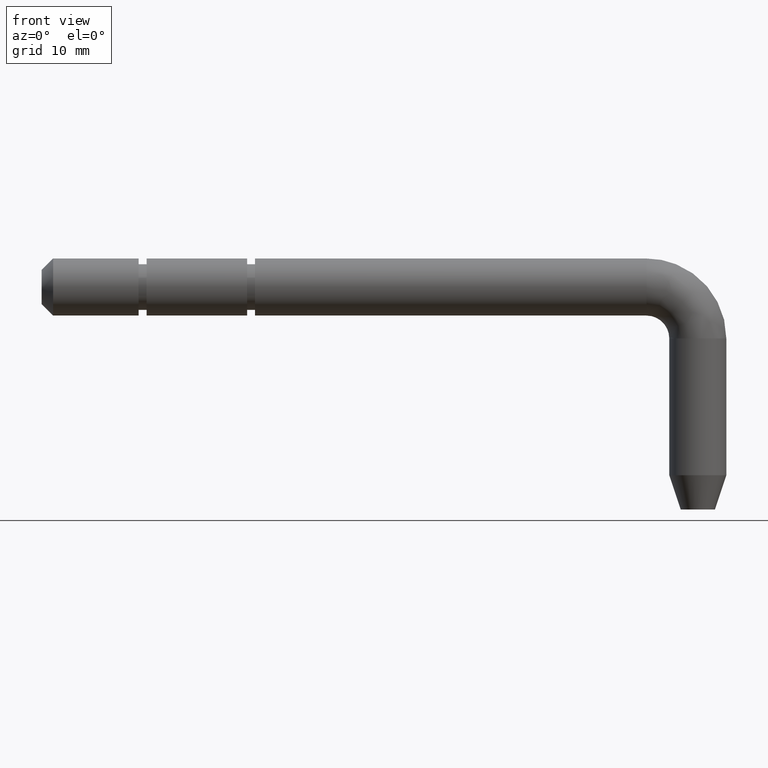
[diagram: clean part render]
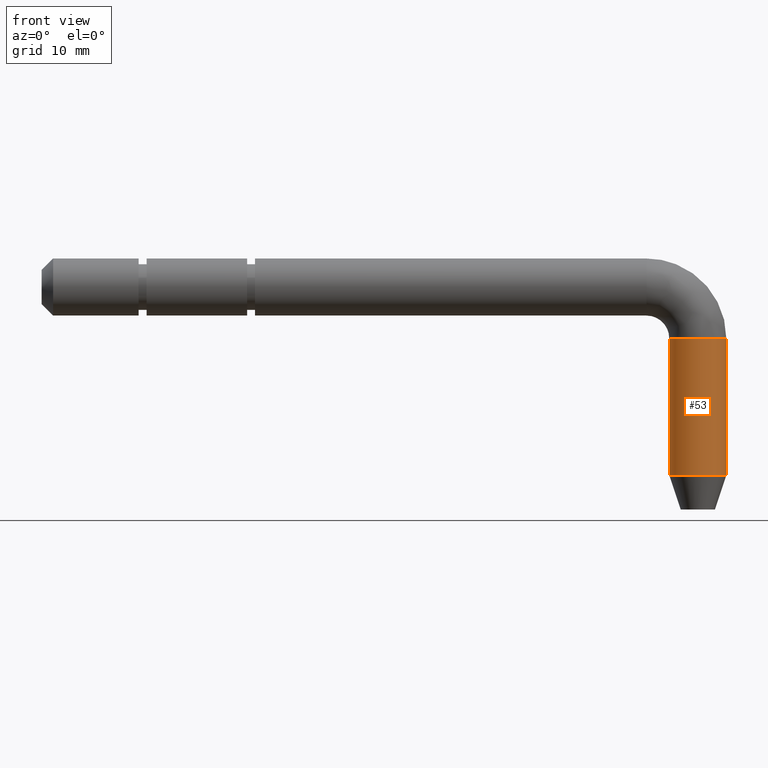
[diagram: same view with one face highlighted and labeled with its STEP entity id]
A machine part, front view. The second image highlights one B-rep face of the part: STEP entity #53.
In plain terms, the highlighted cylindrical surface (edge-blend (fillet) strip) has radius 2.5 mm, axis along (0, 0, -1).
Its self-contained STEP definition (entity closure, byte-faithful):
#53=ADVANCED_FACE('',(#199),#198,.T.);
#198=CYLINDRICAL_SURFACE('',#428,2.50000000000E+00);
#199=FACE_OUTER_BOUND('',#429,.T.);
#425=CARTESIAN_POINT('',(5.75000000000E+01,1.96182736230E-15,-1.77000000000E+01));
#426=DIRECTION('',(1.53824696311E-32,2.51214793389E-16,-1.00000000000E+00));
#427=DIRECTION('',(-1.00000000000E+00,7.84730944919E-16,1.81753552563E-31));
#428=AXIS2_PLACEMENT_3D('',#425,#426,#427);
#429=EDGE_LOOP('',(#552,#553,#554,#555));
#552=ORIENTED_EDGE('',*,*,#621,.T.);
#553=ORIENTED_EDGE('',*,*,#627,.T.);
#554=ORIENTED_EDGE('',*,*,#629,.F.);
#555=ORIENTED_EDGE('',*,*,#628,.F.);
#621=EDGE_CURVE('',#643,#642,#816,.T.);
#627=EDGE_CURVE('',#642,#846,#854,.T.);
#628=EDGE_CURVE('',#643,#847,#860,.T.);
#629=EDGE_CURVE('',#847,#846,#866,.T.);
#642=VERTEX_POINT('',#946);
#643=VERTEX_POINT('',#947);
#816=CIRCLE('',#1074,2.50000000000E+00);
#846=VERTEX_POINT('',#1083);
#847=VERTEX_POINT('',#1084);
#854=(BOUNDED_CURVE() B_SPLINE_CURVE(1,(#1089,#1090),.UNSPECIFIED.,.F.,.F.) B_SPLINE_CURVE_WITH_KNOTS((2,2),(8.33333343261E-02,9.16666667006E-01),.UNSPECIFIED.) CURVE() GEOMETRIC_REPRESENTATION_ITEM() RATIONAL_B_SPLINE_CURVE((1.00000000000E+00,1.00000000000E+00)) REPRESENTATION_ITEM('') );
#860=(BOUNDED_CURVE() B_SPLINE_CURVE(1,(#1091,#1092),.UNSPECIFIED.,.F.,.F.) B_SPLINE_CURVE_WITH_KNOTS((2,2),(8.33333333333E-02,9.16666666667E-01),.UNSPECIFIED.) CURVE() GEOMETRIC_REPRESENTATION_ITEM() RATIONAL_B_SPLINE_CURVE((7.50000000000E-01,7.50000000000E-01)) REPRESENTATION_ITEM('') );
#866=CIRCLE('',#1096,2.50000000000E+00);
#946=CARTESIAN_POINT('',(5.50000000000E+01,1.48029736617E-16,-4.50000000000E+00));
#947=CARTESIAN_POINT('',(6.00000000000E+01,3.06151588456E-16,-4.50000000000E+00));
#1071=CARTESIAN_POINT('',(5.75000000000E+01,-1.53080849893E-16,-4.50000000000E+00));
#1072=DIRECTION('',(0.00000000000E+00,0.00000000000E+00,-1.00000000000E+00));
#1073=DIRECTION('',(-1.00000000000E+00,-6.12323399574E-17,-0.00000000000E+00));
#1074=AXIS2_PLACEMENT_3D('',#1071,#1072,#1073);
#1083=CARTESIAN_POINT('',(5.50000000000E+01,0.00000000000E+00,-1.65000000000E+01));
#1084=CARTESIAN_POINT('',(6.00000000000E+01,7.60343024859E-16,-1.65000000000E+01));
#1089=CARTESIAN_POINT('',(5.50000000000E+01,6.07619455445E-16,-4.50000001430E+00));
#1090=CARTESIAN_POINT('',(5.50000000000E+01,3.62219697375E-15,-1.65000000049E+01));
#1091=CARTESIAN_POINT('',(6.00000000000E+01,-3.40468394218E-15,-4.50000000000E+00));
#1092=CARTESIAN_POINT('',(6.00000000000E+01,-4.44089209850E-16,-1.65000000000E+01));
#1093=CARTESIAN_POINT('',(5.75000000000E+01,1.53080849893E-16,-1.65000000000E+01));
#1094=DIRECTION('',(6.05147470221E-32,-5.02429586779E-16,-1.00000000000E+00));
#1095=DIRECTION('',(1.00000000000E+00,1.20444234604E-16,-0.00000000000E+00));
#1096=AXIS2_PLACEMENT_3D('',#1093,#1094,#1095);